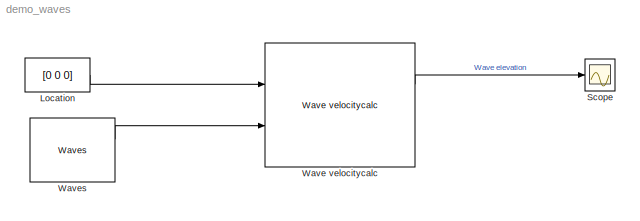
MODEL demo_waves
KIND model
BLOCK [Constant] Location
  ConRadixGroup = Use specified scaling
  FramePeriod = inf
  OutDataType = sfix(16)
  OutDataTypeMode = Inherit from 'Constant value'
  OutScaling = 2^0
  SampleTime = inf
  SamplingMode = Sample based
  Value = [0 0 0]
  VectorParams1D = on
BLOCK [Scope] Scope
  DataFormat = StructureWithTime
  Floating = off
  NumInputPorts = 1
  Ports = [1]
  SampleTime = 0
  TimeRange = 100
  YMax = 0.6000000000000001
  YMin = -0.8
BLOCK [Reference] Wave velocitycalc  REF=marine_gnc/Environment/Waves/Wave velocitycalc  (lib defined in mdl_10d96c221ba8, mdl_45f1105420c6)
  FunctionWithSeparateData = off
  Ports = [2, 2]
  RTWMemSecDataConstants = Inherit from model
  RTWMemSecDataInternal = Inherit from model
  RTWMemSecDataParameters = Inherit from model
  RTWMemSecFuncExecute = Inherit from model
  RTWMemSecFuncInitTerm = Inherit from model
  ShowPortLabels = on
  SourceBlock = marine_gnc/Environment/Waves/Wave velocitycalc
  SourceType = Wave velocitycalc
  SystemSampleTime = -1
BLOCK [Reference] Waves  REF=marine_gnc/Environment/Waves/Waves  (lib defined in mdl_10d96c221ba8, mdl_45f1105420c6)
  FunctionWithSeparateData = off
  Omega = 0
  Phase = 0
  Ports = [0, 2]
  Psi = 0
  RTWMemSecDataConstants = Inherit from model
  RTWMemSecDataInternal = Inherit from model
  RTWMemSecDataParameters = Inherit from model
  RTWMemSecFuncExecute = Inherit from model
  RTWMemSecFuncInitTerm = Inherit from model
  ShowPortLabels = on
  SourceBlock = marine_gnc/Environment/Waves/Waves
  SourceType = Waves
  SystemSampleTime = -1
  Wavenum = 0
  Zeta_a = 0
  depth = inf
  dir_cutoff = 0
  disp_flag = on
  energylim = 0.005
  freq_cutoff = 3
  gamma = -1
  hs = 0.8
  ndir = 10
  nfreq = 20
  omega_peak = 0
  plot_realization = on
  plot_spectrum = on
  psi_mean = 0
  rand_dir = on
  rand_freq = on
  rand_seed = 123
  spectrum_type = ITTC
  spread = 2
LINE Location:1 -> Wave velocitycalc:1
LINE Wave velocitycalc:1 -> Scope:1
LINE Waves:1 -> Wave velocitycalc:2
